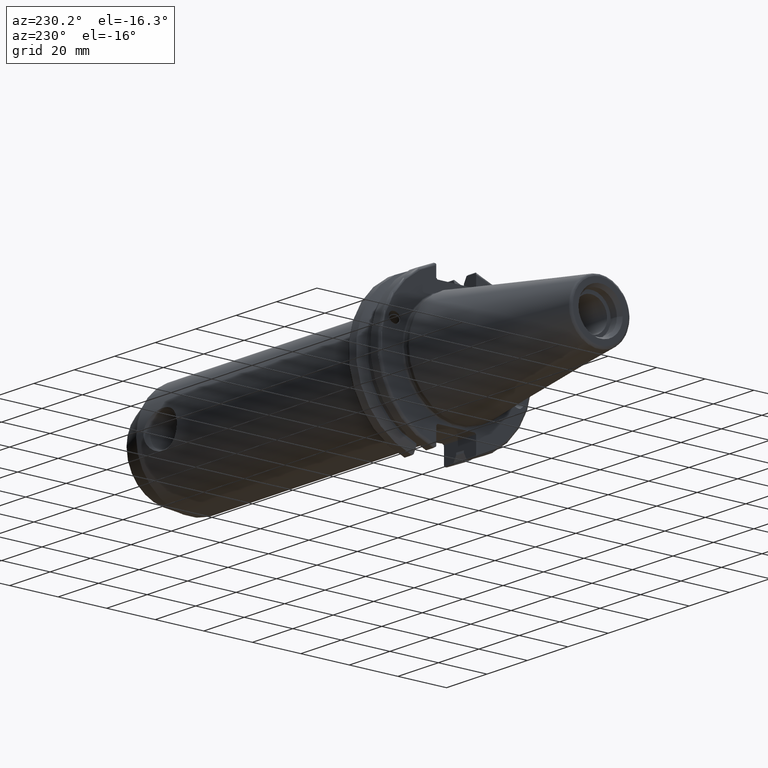
[diagram: clean part render]
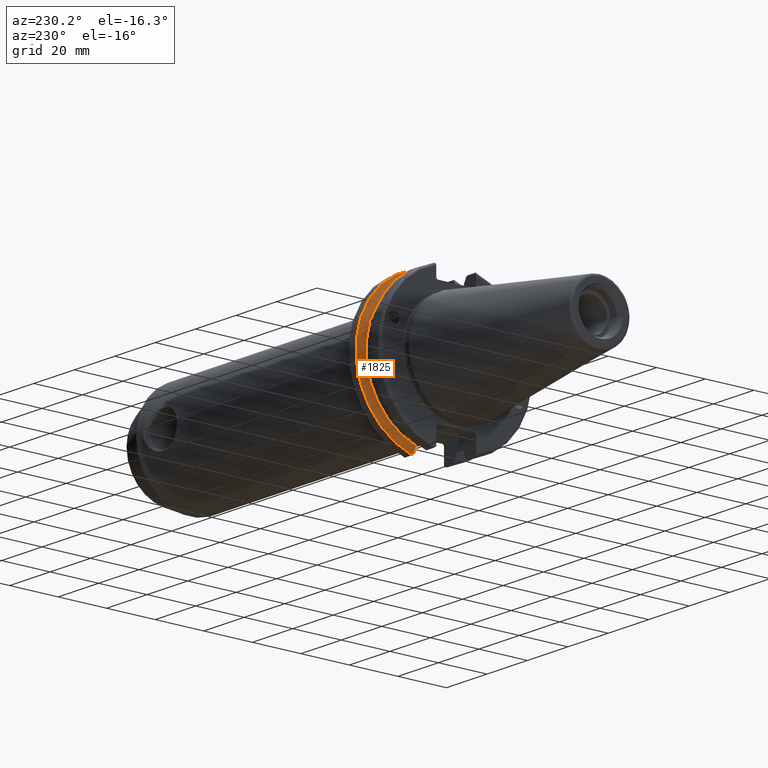
[diagram: same view with one face highlighted and labeled with its STEP entity id]
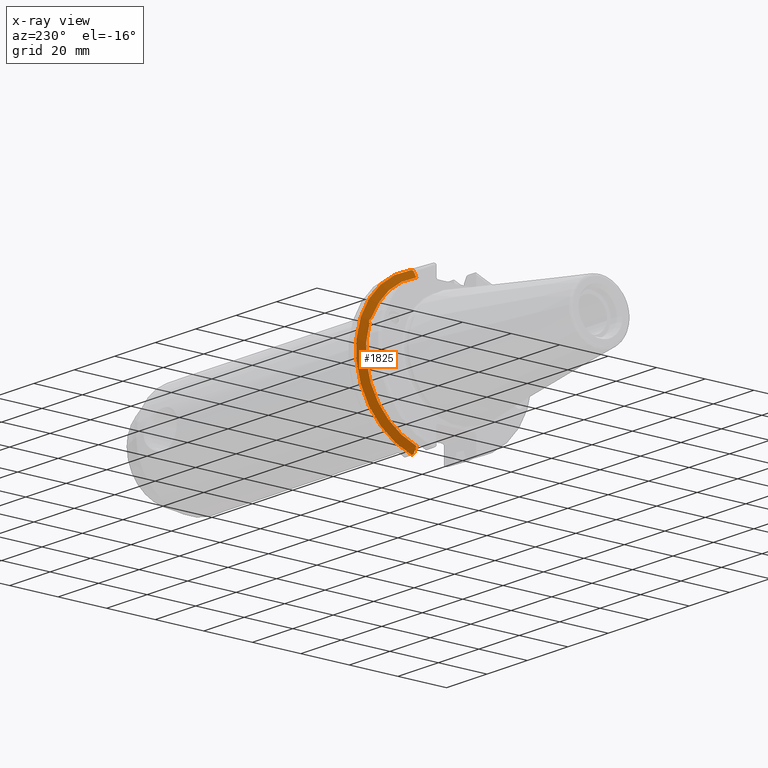
[diagram: x-ray of the same camera — body ghosted, the highlighted face saturated]
A machine part, auxiliary view. The second image highlights one B-rep face of the part: STEP entity #1825.
The next image is the same camera in x-ray: the body ghosted, the highlighted face saturated — about 0% of this face is hidden behind the body in this view.
In plain terms, the highlighted conical surface has half-angle 60 deg.
Its self-contained STEP definition (entity closure, byte-faithful):
#23=(
BOUNDED_CURVE()
B_SPLINE_CURVE(2,(#3395,#3396,#3397),.UNSPECIFIED.,.F.,.F.)
B_SPLINE_CURVE_WITH_KNOTS((3,3),(0.329353533631226,0.393258405001025),
 .UNSPECIFIED.)
CURVE()
GEOMETRIC_REPRESENTATION_ITEM()
RATIONAL_B_SPLINE_CURVE((1.00047644010577,1.00028444218285,1.))
REPRESENTATION_ITEM('')
);
#24=(
BOUNDED_CURVE()
B_SPLINE_CURVE(2,(#3410,#3411,#3412),.UNSPECIFIED.,.F.,.F.)
B_SPLINE_CURVE_WITH_KNOTS((3,3),(0.0550586467393769,0.331607789535852),
 .UNSPECIFIED.)
CURVE()
GEOMETRIC_REPRESENTATION_ITEM()
RATIONAL_B_SPLINE_CURVE((1.00031614444922,1.00095203903643,1.))
REPRESENTATION_ITEM('')
);
#29=(
BOUNDED_CURVE()
B_SPLINE_CURVE(2,(#3589,#3590,#3591),.UNSPECIFIED.,.F.,.F.)
B_SPLINE_CURVE_WITH_KNOTS((3,3),(0.,0.276549142795274),.UNSPECIFIED.)
CURVE()
GEOMETRIC_REPRESENTATION_ITEM()
RATIONAL_B_SPLINE_CURVE((1.,1.00095203903599,1.00031614444907))
REPRESENTATION_ITEM('')
);
#30=(
BOUNDED_CURVE()
B_SPLINE_CURVE(2,(#3606,#3607,#3608),.UNSPECIFIED.,.F.,.F.)
B_SPLINE_CURVE_WITH_KNOTS((3,3),(0.,0.0639048713675655),.UNSPECIFIED.)
CURVE()
GEOMETRIC_REPRESENTATION_ITEM()
RATIONAL_B_SPLINE_CURVE((1.,1.00028444218286,1.00047644010578))
REPRESENTATION_ITEM('')
);
#84=CONICAL_SURFACE('',#2062,30.3546886482472,1.0471975511966);
#365=CIRCLE('',#1978,28.9593772964944);
#397=CIRCLE('',#2046,31.75);
#406=CIRCLE('',#2063,28.9593772964944);
#533=FACE_OUTER_BOUND('',#639,.T.);
#639=EDGE_LOOP('',(#1685,#1686,#1687,#1688,#1689,#1690,#1691,#1692,#1693));
#674=B_SPLINE_CURVE_WITH_KNOTS('',3,(#3185,#3186,#3187,#3188,#3189,#3190,
#3191,#3192),.UNSPECIFIED.,.F.,.F.,(4,2,2,4),(0.451995700189023,0.464547828547662,
0.504528771685167,0.544509714822672),.UNSPECIFIED.);
#678=B_SPLINE_CURVE_WITH_KNOTS('',3,(#3247,#3248,#3249,#3250,#3251,#3252,
#3253,#3254),.UNSPECIFIED.,.F.,.F.,(4,2,2,4),(0.544509714822672,0.584490657960177,
0.624471601097682,0.637023729456323),.UNSPECIFIED.);
#798=VERTEX_POINT('',#3182);
#799=VERTEX_POINT('',#3184);
#806=VERTEX_POINT('',#3245);
#815=VERTEX_POINT('',#3286);
#848=VERTEX_POINT('',#3392);
#849=VERTEX_POINT('',#3394);
#880=VERTEX_POINT('',#3586);
#881=VERTEX_POINT('',#3588);
#884=VERTEX_POINT('',#3604);
#1029=EDGE_CURVE('',#799,#798,#674,.T.);
#1037=EDGE_CURVE('',#798,#806,#678,.T.);
#1049=EDGE_CURVE('',#815,#799,#365,.T.);
#1089=EDGE_CURVE('',#848,#849,#23,.T.);
#1095=EDGE_CURVE('',#848,#815,#24,.T.);
#1147=EDGE_CURVE('',#881,#880,#29,.T.);
#1155=EDGE_CURVE('',#884,#880,#30,.T.);
#1156=EDGE_CURVE('',#849,#884,#397,.T.);
#1168=EDGE_CURVE('',#806,#881,#406,.T.);
#1685=ORIENTED_EDGE('',*,*,#1029,.T.);
#1686=ORIENTED_EDGE('',*,*,#1037,.T.);
#1687=ORIENTED_EDGE('',*,*,#1168,.T.);
#1688=ORIENTED_EDGE('',*,*,#1147,.T.);
#1689=ORIENTED_EDGE('',*,*,#1155,.F.);
#1690=ORIENTED_EDGE('',*,*,#1156,.F.);
#1691=ORIENTED_EDGE('',*,*,#1089,.F.);
#1692=ORIENTED_EDGE('',*,*,#1095,.T.);
#1693=ORIENTED_EDGE('',*,*,#1049,.T.);
#1825=ADVANCED_FACE('',(#533),#84,.T.);
#1978=AXIS2_PLACEMENT_3D('',#3287,#2361,#2362);
#2046=AXIS2_PLACEMENT_3D('',#3610,#2547,#2548);
#2062=AXIS2_PLACEMENT_3D('',#3634,#2582,#2583);
#2063=AXIS2_PLACEMENT_3D('',#3635,#2584,#2585);
#2361=DIRECTION('center_axis',(1.,0.,0.));
#2362=DIRECTION('ref_axis',(0.,0.,-1.));
#2547=DIRECTION('center_axis',(1.,0.,0.));
#2548=DIRECTION('ref_axis',(0.,0.,-1.));
#2582=DIRECTION('center_axis',(1.,0.,0.));
#2583=DIRECTION('ref_axis',(0.,1.,0.));
#2584=DIRECTION('center_axis',(1.,0.,0.));
#2585=DIRECTION('ref_axis',(0.,0.,-1.));
#3182=CARTESIAN_POINT('',(13.2341,27.51401829017,10.0142836826778));
#3184=CARTESIAN_POINT('',(13.0491,27.4956274489925,9.09043478536244));
#3185=CARTESIAN_POINT('Ctrl Pts',(13.0491,27.4956274489925,9.09043478536245));
#3186=CARTESIAN_POINT('Ctrl Pts',(13.0632204071996,27.5087667900418,9.12860597076217));
#3187=CARTESIAN_POINT('Ctrl Pts',(13.0766929817857,27.5206055003512,9.16696618806877));
#3188=CARTESIAN_POINT('Ctrl Pts',(13.130081441159,27.5642934663232,9.32791534028656));
#3189=CARTESIAN_POINT('Ctrl Pts',(13.1682197084175,27.5867382255984,9.46717946402648));
#3190=CARTESIAN_POINT('Ctrl Pts',(13.2204106446058,27.5847569104122,9.74771639360672));
#3191=CARTESIAN_POINT('Ctrl Pts',(13.2341,27.559599249844,9.8890510252165));
#3192=CARTESIAN_POINT('Ctrl Pts',(13.2341,27.51401829017,10.0142836826778));
#3245=CARTESIAN_POINT('',(13.0491,26.9060914640648,10.7101715919071));
#3247=CARTESIAN_POINT('Ctrl Pts',(13.2341,27.51401829017,10.0142836826778));
#3248=CARTESIAN_POINT('Ctrl Pts',(13.2341,27.4684373304961,10.139516340139));
#3249=CARTESIAN_POINT('Ctrl Pts',(13.2204106446058,27.3968610665578,10.2639559818059));
#3250=CARTESIAN_POINT('Ctrl Pts',(13.1682197084175,27.2180531796526,10.4801333026531));
#3251=CARTESIAN_POINT('Ctrl Pts',(13.130081441159,27.1113422433189,10.5723885976054));
#3252=CARTESIAN_POINT('Ctrl Pts',(13.0766929817857,26.9744191989197,10.6676007180674));
#3253=CARTESIAN_POINT('Ctrl Pts',(13.0632204071996,26.9406927482839,10.6893765730703));
#3254=CARTESIAN_POINT('Ctrl Pts',(13.0491,26.9060914640648,10.7101715919071));
#3286=CARTESIAN_POINT('',(13.0491,8.19,-27.7771386827498));
#3287=CARTESIAN_POINT('Origin',(13.0491,0.,0.));
#3392=CARTESIAN_POINT('',(14.3815146964874,8.19,-30.1755016258903));
#3394=CARTESIAN_POINT('',(14.6602667690756,8.67204822802685,-30.5427254764662));
#3395=CARTESIAN_POINT('Ctrl Pts',(14.3815146964874,8.19,-30.1755016258903));
#3396=CARTESIAN_POINT('Ctrl Pts',(14.5192085187884,8.42917748263464,-30.3577067892692));
#3397=CARTESIAN_POINT('Ctrl Pts',(14.6602667690756,8.67204822802686,-30.5427254764662));
#3410=CARTESIAN_POINT('Ctrl Pts',(14.3815146964874,8.18999999999999,-30.1755016258903));
#3411=CARTESIAN_POINT('Ctrl Pts',(13.687736438474,8.19,-28.9303689539668));
#3412=CARTESIAN_POINT('Ctrl Pts',(13.0491,8.19,-27.7771386827498));
#3586=CARTESIAN_POINT('',(14.3815146964874,8.19,30.1755016258903));
#3588=CARTESIAN_POINT('',(13.0491,8.19,27.7771386827498));
#3589=CARTESIAN_POINT('Ctrl Pts',(13.0491,8.19,27.7771386827498));
#3590=CARTESIAN_POINT('Ctrl Pts',(13.687736438489,8.19,28.9303689539938));
#3591=CARTESIAN_POINT('Ctrl Pts',(14.3815146964874,8.19,30.1755016258903));
#3604=CARTESIAN_POINT('',(14.6602667690756,8.67204822802685,30.5427254764662));
#3606=CARTESIAN_POINT('Ctrl Pts',(14.6602667690756,8.67204822802687,30.5427254764662));
#3607=CARTESIAN_POINT('Ctrl Pts',(14.5192085187837,8.42917748262644,30.357706789263));
#3608=CARTESIAN_POINT('Ctrl Pts',(14.3815146964874,8.19,30.1755016258903));
#3610=CARTESIAN_POINT('Origin',(14.6602667690756,0.,0.));
#3634=CARTESIAN_POINT('Origin',(13.8546833845378,0.,0.));
#3635=CARTESIAN_POINT('Origin',(13.0491,0.,0.));